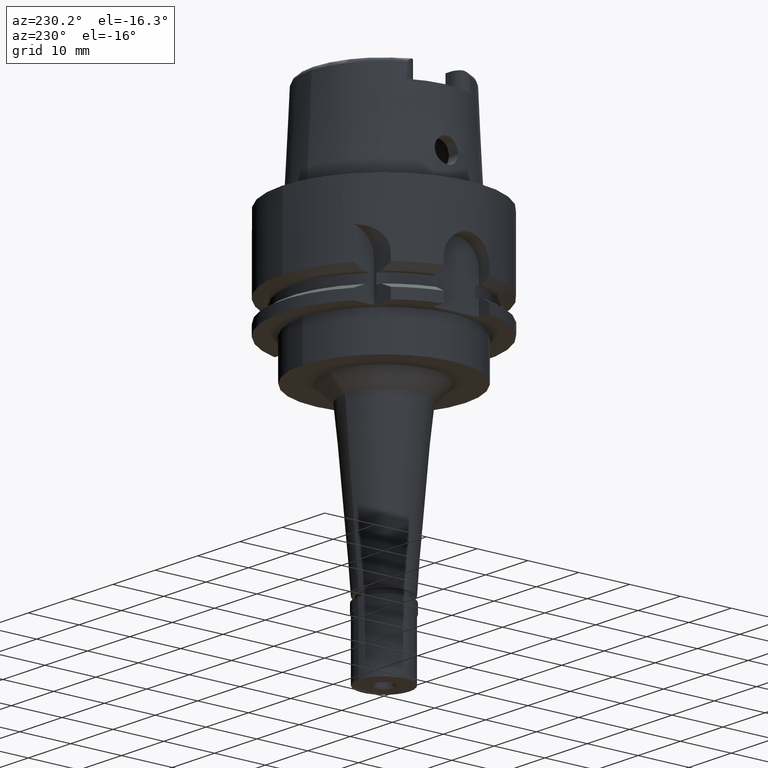
[diagram: clean part render]
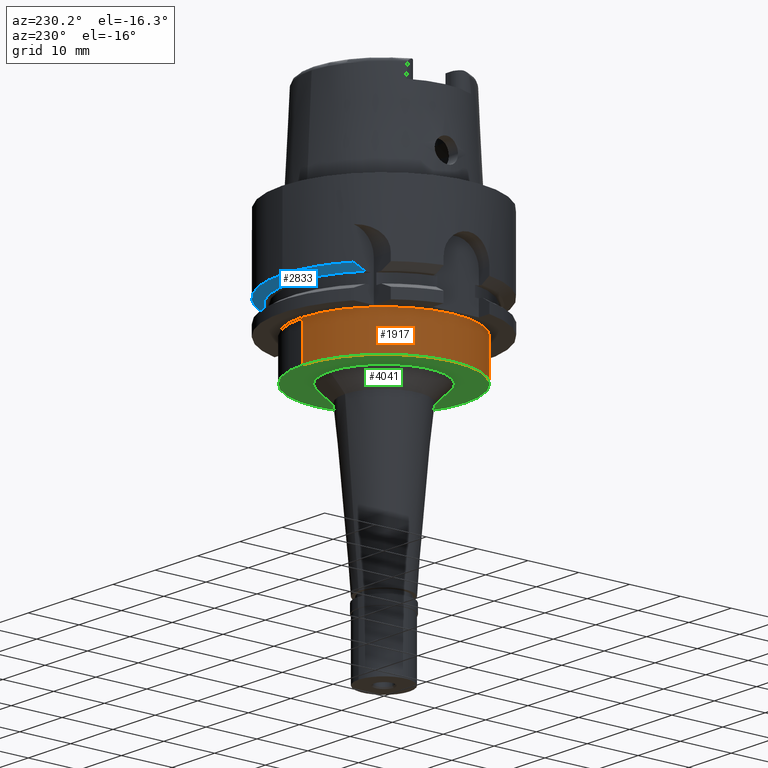
[diagram: same view with three faces highlighted in distinct colors, each labeled with its STEP entity id]
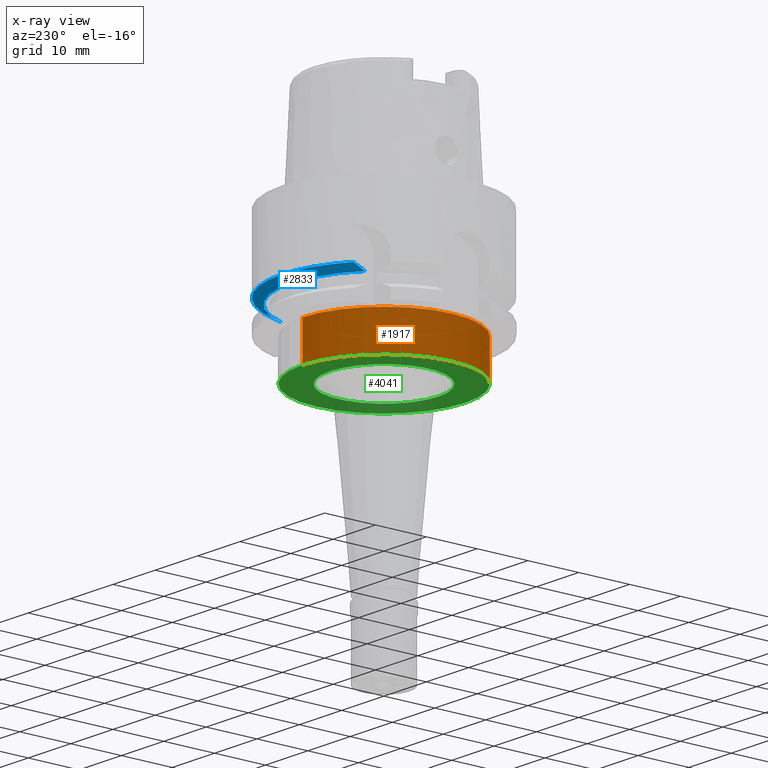
[diagram: x-ray of the same camera — body ghosted, the three highlighted faces saturated]
A machine part, auxiliary view with three faces highlighted in distinct colors.
The next image is the same camera in x-ray (body ghosted, the three faces saturated) — at least one of them is partly hidden behind the body in this view.
Their STEP definitions:

[orange] entity #1917 — the highlighted cylindrical surface (partial cylindrical patch) has radius 16 mm, axis along (0, 0, -1).
#148 = EDGE_CURVE ( 'NONE', #3066, #4958, #958, .T. ) ;
#350 = CYLINDRICAL_SURFACE ( 'NONE', #3708, 16.00000000000000000 ) ;
#527 = EDGE_LOOP ( 'NONE', ( #1345, #4936, #1841, #677 ) ) ;
#549 = DIRECTION ( 'NONE',  ( 0.0000000000000000000, 0.0000000000000000000, -1.000000000000000000 ) ) ;
#646 = CIRCLE ( 'NONE', #3720, 16.00000000000000000 ) ;
#677 = ORIENTED_EDGE ( 'NONE', *, *, #148, .T. ) ;
#832 = CARTESIAN_POINT ( 'NONE',  ( 0.0000000000000000000, 1.525481285357999688E-14, -27.50000000000000000 ) ) ;
#908 = AXIS2_PLACEMENT_3D ( 'NONE', #2265, #2287, #1881 ) ;
#943 = DIRECTION ( 'NONE',  ( 0.0000000000000000000, 0.0000000000000000000, -1.000000000000000000 ) ) ;
#958 = LINE ( 'NONE', #4202, #3189 ) ;
#1345 = ORIENTED_EDGE ( 'NONE', *, *, #3333, .T. ) ;
#1841 = ORIENTED_EDGE ( 'NONE', *, *, #3501, .T. ) ;
#1881 = DIRECTION ( 'NONE',  ( 0.0000000000000000000, -1.000000000000000000, 0.0000000000000000000 ) ) ;
#1917 = ADVANCED_FACE ( 'NONE', ( #2417 ), #350, .T. ) ;
#2050 = EDGE_CURVE ( 'NONE', #2394, #2070, #4188, .T. ) ;
#2070 = VERTEX_POINT ( 'NONE', #4141 ) ;
#2265 = CARTESIAN_POINT ( 'NONE',  ( 0.0000000000000000000, 1.525481285357999688E-14, -20.00000000000000000 ) ) ;
#2287 = DIRECTION ( 'NONE',  ( 0.0000000000000000000, 0.0000000000000000000, -1.000000000000000000 ) ) ;
#2394 = VERTEX_POINT ( 'NONE', #3927 ) ;
#2417 = FACE_OUTER_BOUND ( 'NONE', #527, .T. ) ;
#2800 = DIRECTION ( 'NONE',  ( 0.0000000000000000000, 0.0000000000000000000, -1.000000000000000000 ) ) ;
#3039 = VECTOR ( 'NONE', #943, 1000.000000000000000 ) ;
#3066 = VERTEX_POINT ( 'NONE', #4924 ) ;
#3189 = VECTOR ( 'NONE', #549, 1000.000000000000000 ) ;
#3333 = EDGE_CURVE ( 'NONE', #4958, #2070, #646, .T. ) ;
#3501 = EDGE_CURVE ( 'NONE', #2394, #3066, #4136, .T. ) ;
#3708 = AXIS2_PLACEMENT_3D ( 'NONE', #4040, #2800, #5267 ) ;
#3720 = AXIS2_PLACEMENT_3D ( 'NONE', #832, #4087, #4939 ) ;
#3927 = CARTESIAN_POINT ( 'NONE',  ( 0.0000000000000000000, -16.00000000000000000, -20.00000000000000000 ) ) ;
#4040 = CARTESIAN_POINT ( 'NONE',  ( 0.0000000000000000000, 1.525481285357999688E-14, 24.56500000000000128 ) ) ;
#4087 = DIRECTION ( 'NONE',  ( 0.0000000000000000000, 0.0000000000000000000, 1.000000000000000000 ) ) ;
#4136 = CIRCLE ( 'NONE', #908, 16.00000000000000000 ) ;
#4141 = CARTESIAN_POINT ( 'NONE',  ( 0.0000000000000000000, -16.00000000000000000, -27.50000000000000000 ) ) ;
#4188 = LINE ( 'NONE', #4937, #3039 ) ;
#4202 = CARTESIAN_POINT ( 'NONE',  ( 0.0000000000000000000, 16.00000000000000000, -20.00000000000000000 ) ) ;
#4609 = CARTESIAN_POINT ( 'NONE',  ( 0.0000000000000000000, 16.00000000000000000, -27.50000000000000000 ) ) ;
#4924 = CARTESIAN_POINT ( 'NONE',  ( 0.0000000000000000000, 16.00000000000000000, -20.00000000000000000 ) ) ;
#4936 = ORIENTED_EDGE ( 'NONE', *, *, #2050, .F. ) ;
#4937 = CARTESIAN_POINT ( 'NONE',  ( 0.0000000000000000000, -16.00000000000000000, -20.00000000000000000 ) ) ;
#4939 = DIRECTION ( 'NONE',  ( 0.0000000000000000000, 1.000000000000000000, 0.0000000000000000000 ) ) ;
#4958 = VERTEX_POINT ( 'NONE', #4609 ) ;
#5267 = DIRECTION ( 'NONE',  ( 0.0000000000000000000, -1.000000000000000000, 0.0000000000000000000 ) ) ;

[blue] entity #2833 — the highlighted conical surface has half-angle 60 deg.
#22 = DIRECTION ( 'NONE',  ( 0.0000000000000000000, 0.0000000000000000000, 1.000000000000000000 ) ) ;
#47 = DIRECTION ( 'NONE',  ( 0.9534134927694348782, 0.3016665573198109573, 0.0000000000000000000 ) ) ;
#49 = DIRECTION ( 'NONE',  ( 0.0000000000000000000, 1.000000000000000000, 0.0000000000000000000 ) ) ;
#95 = CARTESIAN_POINT ( 'NONE',  ( 0.0000000000000000000, 1.047199923064999921E-14, -13.97927405783999966 ) ) ;
#130 = ORIENTED_EDGE ( 'NONE', *, *, #2576, .F. ) ;
#203 = AXIS2_PLACEMENT_3D ( 'NONE', #2062, #4955, #49 ) ;
#258 = DIRECTION ( 'NONE',  ( 0.0000000000000000000, 0.0000000000000000000, 1.000000000000000000 ) ) ;
#317 = CARTESIAN_POINT ( 'NONE',  ( 17.97044419051982800, 5.499998976252790328, -14.67646506972670650 ) ) ;
#334 = ORIENTED_EDGE ( 'NONE', *, *, #835, .T. ) ;
#690 = CARTESIAN_POINT ( 'NONE',  ( -11.99999819275999968, 16.00000135543000113, -13.97928091979999898 ) ) ;
#719 = CARTESIAN_POINT ( 'NONE',  ( 0.0000000000000000000, 20.00000000000000000, -13.97927405783999966 ) ) ;
#771 = CARTESIAN_POINT ( 'NONE',  ( 17.38269051961000145, 5.499999488780000334, -15.00000000000000000 ) ) ;
#804 = VERTEX_POINT ( 'NONE', #4328 ) ;
#813 = ORIENTED_EDGE ( 'NONE', *, *, #4983, .F. ) ;
#835 = EDGE_CURVE ( 'NONE', #804, #4358, #3847, .T. ) ;
#1102 = CARTESIAN_POINT ( 'NONE',  ( -12.00000000000000000, 15.20638789681309255, -14.34583536812809434 ) ) ;
#1146 = CARTESIAN_POINT ( 'NONE',  ( -11.99999138055999914, 13.72624507007000005, -15.00000000000000000 ) ) ;
#1153 = FACE_OUTER_BOUND ( 'NONE', #3201, .T. ) ;
#1450 = AXIS2_PLACEMENT_3D ( 'NONE', #3315, #22, #47 ) ;
#1564 = ORIENTED_EDGE ( 'NONE', *, *, #4844, .T. ) ;
#2062 = CARTESIAN_POINT ( 'NONE',  ( 0.0000000000000000000, 1.047199923064999921E-14, -13.97927405783999966 ) ) ;
#2280 = CARTESIAN_POINT ( 'NONE',  ( 0.0000000000000000000, 1.047199923064999921E-14, -14.48963702891999894 ) ) ;
#2330 = CARTESIAN_POINT ( 'NONE',  ( -11.99999138055999914, 13.72624507007000005, -15.00000000000000000 ) ) ;
#2365 = CARTESIAN_POINT ( 'NONE',  ( 19.22888455231999671, 5.499999897597000142, -13.97927491597999961 ) ) ;
#2452 = EDGE_CURVE ( 'NONE', #3324, #5178, #2952, .T. ) ;
#2576 = EDGE_CURVE ( 'NONE', #4703, #3324, #4301, .T. ) ;
#2833 = ADVANCED_FACE ( 'NONE', ( #1153 ), #4469, .T. ) ;
#2952 = B_SPLINE_CURVE_WITH_KNOTS ( 'NONE', 3,
 ( #690, #1102, #3981, #2330 ),
 .UNSPECIFIED., .F., .F.,
 ( 4, 4 ),
 ( 0.0000000000000000000, 1.000000000000000000 ),
 .UNSPECIFIED. ) ;
#2986 = AXIS2_PLACEMENT_3D ( 'NONE', #95, #4207, #4232 ) ;
#3201 = EDGE_LOOP ( 'NONE', ( #130, #813, #334, #1564, #4600 ) ) ;
#3315 = CARTESIAN_POINT ( 'NONE',  ( 0.0000000000000000000, 1.047199923064999921E-14, -15.00000000000000000 ) ) ;
#3324 = VERTEX_POINT ( 'NONE', #4982 ) ;
#3847 = B_SPLINE_CURVE_WITH_KNOTS ( 'NONE', 3,
 ( #2365, #4852, #317, #4352 ),
 .UNSPECIFIED., .F., .F.,
 ( 4, 4 ),
 ( 0.0000000000000000000, 1.000000000000000000 ),
 .UNSPECIFIED. ) ;
#3981 = CARTESIAN_POINT ( 'NONE',  ( -12.00000000000000000, 14.44846913502642671, -14.68607506152809350 ) ) ;
#4002 = CIRCLE ( 'NONE', #1450, 18.23205080757000474 ) ;
#4207 = DIRECTION ( 'NONE',  ( 0.0000000000000000000, 0.0000000000000000000, 1.000000000000000000 ) ) ;
#4232 = DIRECTION ( 'NONE',  ( 0.9614442261514726251, 0.2749999999999924727, 0.0000000000000000000 ) ) ;
#4301 = CIRCLE ( 'NONE', #203, 20.00000000000000000 ) ;
#4328 = CARTESIAN_POINT ( 'NONE',  ( 19.22888455231999671, 5.499999897597000142, -13.97927491597999961 ) ) ;
#4352 = CARTESIAN_POINT ( 'NONE',  ( 17.38269051961000145, 5.499999488780000334, -15.00000000000000000 ) ) ;
#4358 = VERTEX_POINT ( 'NONE', #771 ) ;
#4469 = CONICAL_SURFACE ( 'NONE', #5157, 19.11602540378000015, 1.047197551196400456 ) ;
#4600 = ORIENTED_EDGE ( 'NONE', *, *, #2452, .F. ) ;
#4703 = VERTEX_POINT ( 'NONE', #719 ) ;
#4797 = DIRECTION ( 'NONE',  ( 0.0000000000000000000, 1.000000000000000000, 0.0000000000000000000 ) ) ;
#4844 = EDGE_CURVE ( 'NONE', #4358, #5178, #4002, .T. ) ;
#4852 = CARTESIAN_POINT ( 'NONE',  ( 18.58583565562679851, 5.499999795281355297, -14.33622413992038425 ) ) ;
#4955 = DIRECTION ( 'NONE',  ( 0.0000000000000000000, 0.0000000000000000000, 1.000000000000000000 ) ) ;
#4982 = CARTESIAN_POINT ( 'NONE',  ( -11.99999819275999968, 16.00000135543000113, -13.97928091979999898 ) ) ;
#4983 = EDGE_CURVE ( 'NONE', #804, #4703, #5274, .T. ) ;
#5157 = AXIS2_PLACEMENT_3D ( 'NONE', #2280, #258, #4797 ) ;
#5178 = VERTEX_POINT ( 'NONE', #1146 ) ;
#5274 = CIRCLE ( 'NONE', #2986, 20.00000000000000355 ) ;

[green] entity #4041 — the highlighted planar face has unit normal (0, 0, -1).
#36 = DIRECTION ( 'NONE',  ( 0.0000000000000000000, 1.000000000000000000, 0.0000000000000000000 ) ) ;
#120 = DIRECTION ( 'NONE',  ( 0.0000000000000000000, 0.0000000000000000000, -1.000000000000000000 ) ) ;
#142 = EDGE_CURVE ( 'NONE', #3972, #1650, #3104, .T. ) ;
#430 = CARTESIAN_POINT ( 'NONE',  ( 0.0000000000000000000, 0.0000000000000000000, -27.50000000000000000 ) ) ;
#561 = EDGE_LOOP ( 'NONE', ( #592, #4009 ) ) ;
#582 = DIRECTION ( 'NONE',  ( 0.0000000000000000000, -1.000000000000000000, 0.0000000000000000000 ) ) ;
#592 = ORIENTED_EDGE ( 'NONE', *, *, #3333, .F. ) ;
#641 = CARTESIAN_POINT ( 'NONE',  ( 0.0000000000000000000, 0.0000000000000000000, -27.50000000000000000 ) ) ;
#646 = CIRCLE ( 'NONE', #3720, 16.00000000000000000 ) ;
#832 = CARTESIAN_POINT ( 'NONE',  ( 0.0000000000000000000, 1.525481285357999688E-14, -27.50000000000000000 ) ) ;
#1381 = CIRCLE ( 'NONE', #4529, 16.00000000000000000 ) ;
#1446 = FACE_OUTER_BOUND ( 'NONE', #561, .T. ) ;
#1517 = ORIENTED_EDGE ( 'NONE', *, *, #3468, .F. ) ;
#1650 = VERTEX_POINT ( 'NONE', #4891 ) ;
#1759 = DIRECTION ( 'NONE',  ( 0.0000000000000000000, -1.000000000000000000, 0.0000000000000000000 ) ) ;
#1795 = PLANE ( 'NONE',  #2671 ) ;
#2070 = VERTEX_POINT ( 'NONE', #4141 ) ;
#2074 = DIRECTION ( 'NONE',  ( 0.0000000000000000000, 0.0000000000000000000, -1.000000000000000000 ) ) ;
#2105 = AXIS2_PLACEMENT_3D ( 'NONE', #430, #2074, #36 ) ;
#2281 = DIRECTION ( 'NONE',  ( 0.0000000000000000000, 0.0000000000000000000, 1.000000000000000000 ) ) ;
#2671 = AXIS2_PLACEMENT_3D ( 'NONE', #641, #5015, #3030 ) ;
#2845 = AXIS2_PLACEMENT_3D ( 'NONE', #3020, #120, #1759 ) ;
#3020 = CARTESIAN_POINT ( 'NONE',  ( 0.0000000000000000000, 0.0000000000000000000, -27.50000000000000000 ) ) ;
#3030 = DIRECTION ( 'NONE',  ( 0.0000000000000000000, -1.000000000000000000, 0.0000000000000000000 ) ) ;
#3081 = FACE_BOUND ( 'NONE', #4538, .T. ) ;
#3104 = CIRCLE ( 'NONE', #2845, 10.66840423753999900 ) ;
#3221 = CIRCLE ( 'NONE', #2105, 10.66840423753999900 ) ;
#3333 = EDGE_CURVE ( 'NONE', #4958, #2070, #646, .T. ) ;
#3468 = EDGE_CURVE ( 'NONE', #1650, #3972, #3221, .T. ) ;
#3481 = CARTESIAN_POINT ( 'NONE',  ( 0.0000000000000000000, -10.66840423753999900, -27.50000000000000000 ) ) ;
#3720 = AXIS2_PLACEMENT_3D ( 'NONE', #832, #4087, #4939 ) ;
#3791 = CARTESIAN_POINT ( 'NONE',  ( 0.0000000000000000000, 1.525481285357999688E-14, -27.50000000000000000 ) ) ;
#3972 = VERTEX_POINT ( 'NONE', #3481 ) ;
#3999 = ORIENTED_EDGE ( 'NONE', *, *, #142, .F. ) ;
#4009 = ORIENTED_EDGE ( 'NONE', *, *, #4042, .F. ) ;
#4041 = ADVANCED_FACE ( 'NONE', ( #1446, #3081 ), #1795, .T. ) ;
#4042 = EDGE_CURVE ( 'NONE', #2070, #4958, #1381, .T. ) ;
#4087 = DIRECTION ( 'NONE',  ( 0.0000000000000000000, 0.0000000000000000000, 1.000000000000000000 ) ) ;
#4141 = CARTESIAN_POINT ( 'NONE',  ( 0.0000000000000000000, -16.00000000000000000, -27.50000000000000000 ) ) ;
#4529 = AXIS2_PLACEMENT_3D ( 'NONE', #3791, #2281, #582 ) ;
#4538 = EDGE_LOOP ( 'NONE', ( #1517, #3999 ) ) ;
#4609 = CARTESIAN_POINT ( 'NONE',  ( 0.0000000000000000000, 16.00000000000000000, -27.50000000000000000 ) ) ;
#4891 = CARTESIAN_POINT ( 'NONE',  ( 0.0000000000000000000, 10.66840423753999900, -27.50000000000000000 ) ) ;
#4939 = DIRECTION ( 'NONE',  ( 0.0000000000000000000, 1.000000000000000000, 0.0000000000000000000 ) ) ;
#4958 = VERTEX_POINT ( 'NONE', #4609 ) ;
#5015 = DIRECTION ( 'NONE',  ( 0.0000000000000000000, 0.0000000000000000000, -1.000000000000000000 ) ) ;